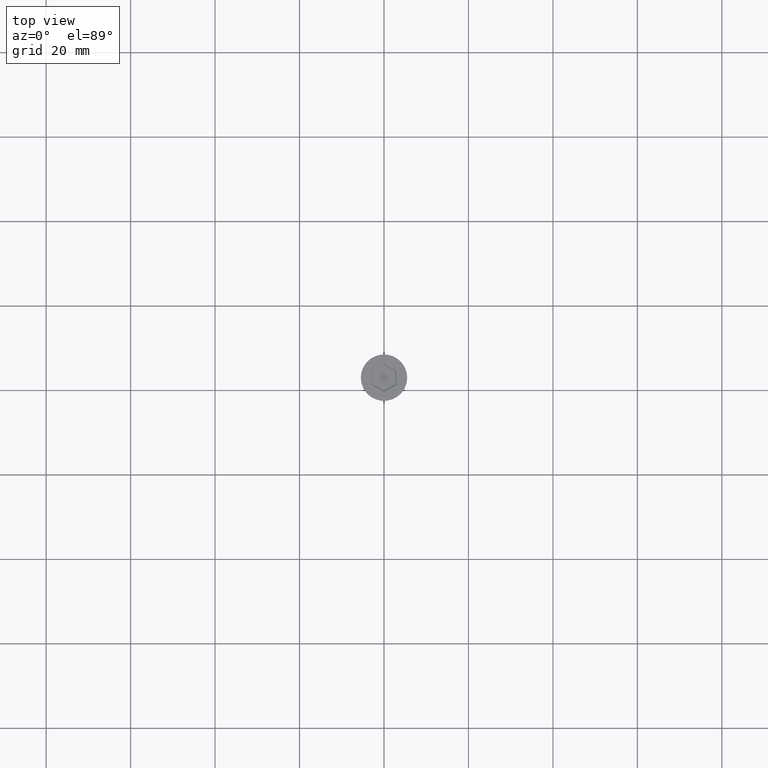
[diagram: clean part render]
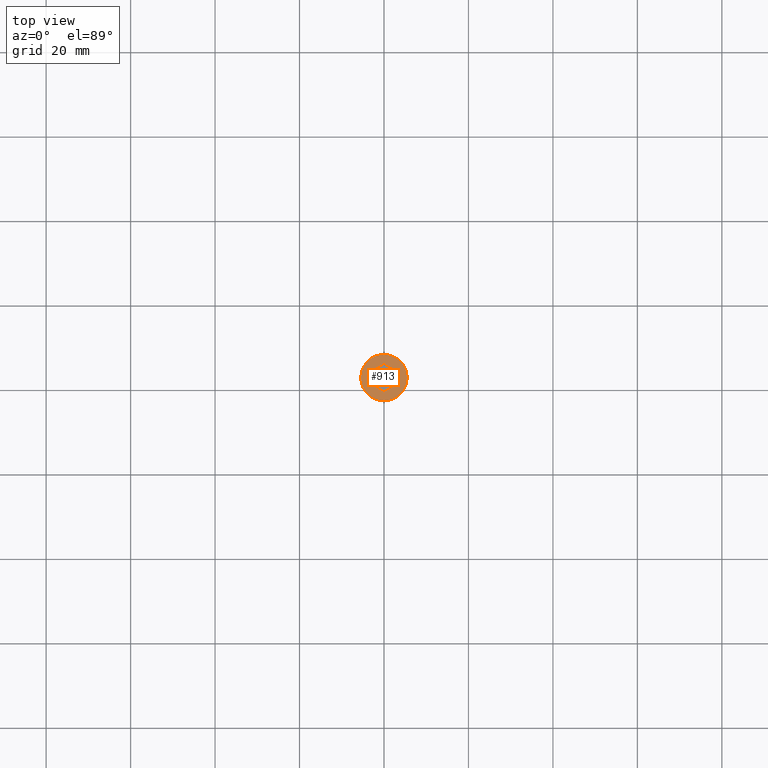
[diagram: same view with one face highlighted and labeled with its STEP entity id]
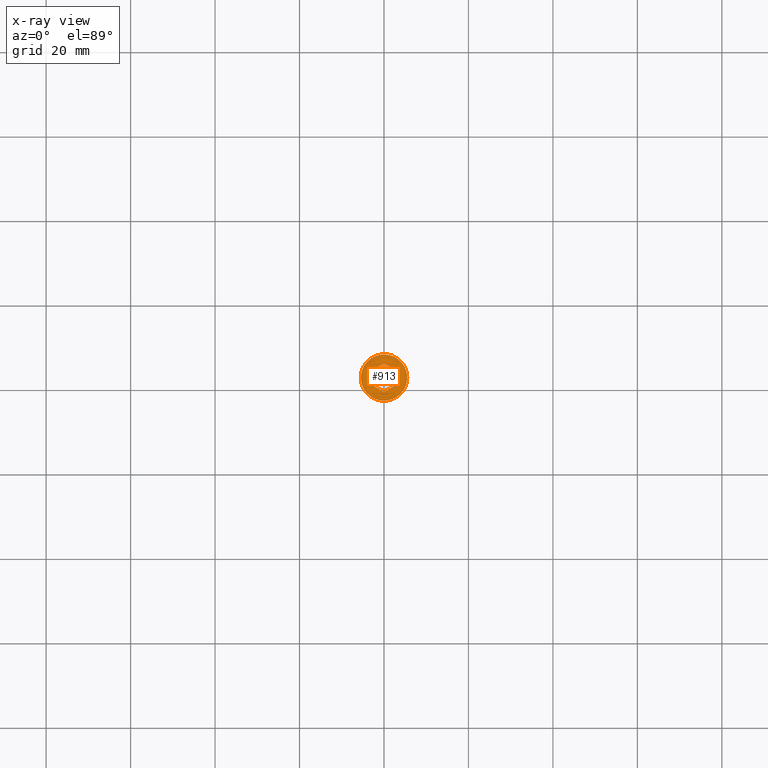
[diagram: x-ray of the same camera — body ghosted, the highlighted face saturated]
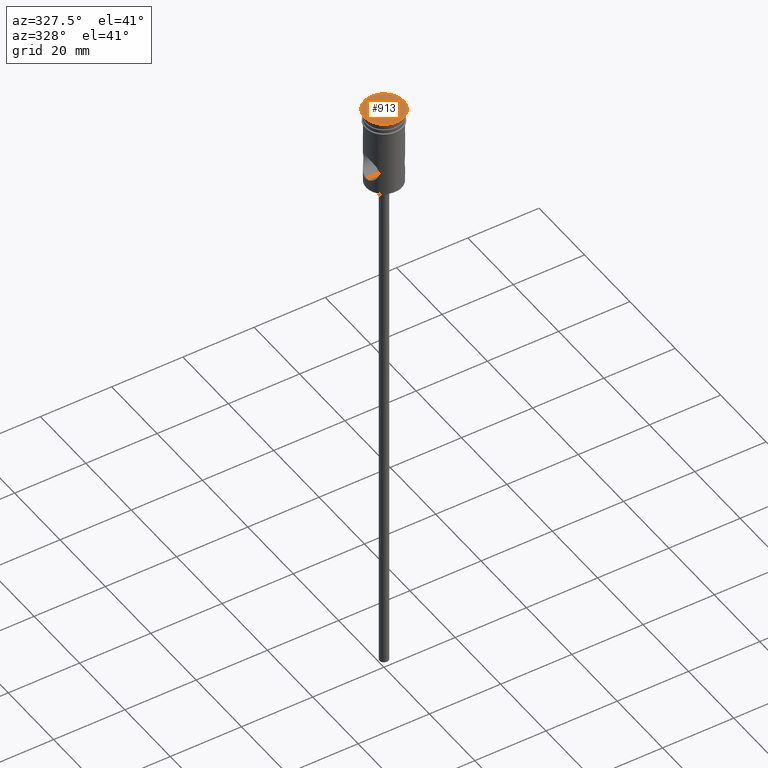
[diagram: same view with one face highlighted and labeled with its STEP entity id]
A machine part, top view. The second image highlights one B-rep face of the part: STEP entity #913.
The next image is the same camera in x-ray: the body ghosted, the highlighted face saturated — about 0% of this face is hidden behind the body in this view.
A second angle (auxiliary view) of the same face is appended — the face is thin or edge-on in the first view.
In plain terms, the highlighted planar face has unit normal (0, -0, 1).
Its self-contained STEP definition (entity closure, byte-faithful):
#17 = CARTESIAN_POINT ( 'NONE',  ( -2.899999999999994138, 1.674315780649911600, 0.000000000000000000 ) ) ;
#20 = AXIS2_PLACEMENT_3D ( 'NONE', #337, #1118, #114 ) ;
#22 = LINE ( 'NONE', #462, #736 ) ;
#31 = ORIENTED_EDGE ( 'NONE', *, *, #693, .T. ) ;
#43 = VERTEX_POINT ( 'NONE', #845 ) ;
#80 = VERTEX_POINT ( 'NONE', #877 ) ;
#105 = ORIENTED_EDGE ( 'NONE', *, *, #883, .T. ) ;
#114 = DIRECTION ( 'NONE',  ( 1.000000000000000000, 0.000000000000000000, 0.000000000000000000 ) ) ;
#129 = FACE_OUTER_BOUND ( 'NONE', #705, .T. ) ;
#133 = CARTESIAN_POINT ( 'NONE',  ( -2.799999999999997158, -1.732050807568871864, 0.000000000000000000 ) ) ;
#136 = AXIS2_PLACEMENT_3D ( 'NONE', #313, #1297, #448 ) ;
#202 = VECTOR ( 'NONE', #549, 1000.000000000000000 ) ;
#313 = CARTESIAN_POINT ( 'NONE',  ( 0.000000000000000000, 0.000000000000000000, 0.000000000000000000 ) ) ;
#330 = VERTEX_POINT ( 'NONE', #543 ) ;
#337 = CARTESIAN_POINT ( 'NONE',  ( 0.000000000000000000, 0.000000000000000000, 0.000000000000000000 ) ) ;
#338 = EDGE_CURVE ( 'NONE', #1261, #80, #1077, .T. ) ;
#339 = VECTOR ( 'NONE', #1004, 1000.000000000000000 ) ;
#341 = AXIS2_PLACEMENT_3D ( 'NONE', #1359, #359, #1056 ) ;
#359 = DIRECTION ( 'NONE',  ( -0.000000000000000000, -0.000000000000000000, 1.000000000000000000 ) ) ;
#386 = VECTOR ( 'NONE', #1408, 1000.000000000000000 ) ;
#413 = LINE ( 'NONE', #618, #760 ) ;
#424 = CARTESIAN_POINT ( 'NONE',  ( -5.500000000000000000, 6.735557395310442023E-16, 0.000000000000000000 ) ) ;
#438 = EDGE_CURVE ( 'NONE', #80, #527, #1410, .T. ) ;
#445 = ORIENTED_EDGE ( 'NONE', *, *, #338, .T. ) ;
#448 = DIRECTION ( 'NONE',  ( 1.000000000000000000, 0.000000000000000000, 0.000000000000000000 ) ) ;
#462 = CARTESIAN_POINT ( 'NONE',  ( -2.899999999999994138, 1.558845726811988852, 0.000000000000000000 ) ) ;
#479 = EDGE_CURVE ( 'NONE', #984, #43, #1007, .T. ) ;
#525 = EDGE_CURVE ( 'NONE', #586, #1261, #1099, .T. ) ;
#527 = VERTEX_POINT ( 'NONE', #1018 ) ;
#528 = VECTOR ( 'NONE', #1234, 1000.000000000000114 ) ;
#543 = CARTESIAN_POINT ( 'NONE',  ( 5.500000000000000000, 0.000000000000000000, 0.000000000000000000 ) ) ;
#549 = DIRECTION ( 'NONE',  ( 0.8660254037844387076, 0.4999999999999998890, 0.000000000000000000 ) ) ;
#553 = PLANE ( 'NONE',  #20 ) ;
#586 = VERTEX_POINT ( 'NONE', #17 ) ;
#599 = CIRCLE ( 'NONE', #341, 5.500000000000000000 ) ;
#618 = CARTESIAN_POINT ( 'NONE',  ( 0.09999999999999654998, -3.290896534380861382, 0.000000000000000000 ) ) ;
#634 = DIRECTION ( 'NONE',  ( -0.8660254037844387076, -0.4999999999999998890, 0.000000000000000000 ) ) ;
#688 = CARTESIAN_POINT ( 'NONE',  ( -0.09999999999999764633, 3.290896534380861382, 0.000000000000000000 ) ) ;
#693 = EDGE_CURVE ( 'NONE', #330, #1422, #599, .T. ) ;
#705 = EDGE_LOOP ( 'NONE', ( #31, #105 ) ) ;
#736 = VECTOR ( 'NONE', #904, 1000.000000000000000 ) ;
#760 = VECTOR ( 'NONE', #634, 1000.000000000000000 ) ;
#784 = ORIENTED_EDGE ( 'NONE', *, *, #839, .T. ) ;
#786 = FACE_BOUND ( 'NONE', #1279, .T. ) ;
#796 = ORIENTED_EDGE ( 'NONE', *, *, #438, .T. ) ;
#839 = EDGE_CURVE ( 'NONE', #527, #984, #413, .T. ) ;
#845 = CARTESIAN_POINT ( 'NONE',  ( -2.899999999999994138, -1.674315780649910934, 0.000000000000000000 ) ) ;
#877 = CARTESIAN_POINT ( 'NONE',  ( 2.899999999999992806, 1.674315780649911378, 0.000000000000000000 ) ) ;
#883 = EDGE_CURVE ( 'NONE', #1422, #330, #896, .T. ) ;
#896 = CIRCLE ( 'NONE', #136, 5.500000000000000000 ) ;
#904 = DIRECTION ( 'NONE',  ( 0.000000000000000000, 1.000000000000000000, 0.000000000000000000 ) ) ;
#913 = ADVANCED_FACE ( 'NONE', ( #786, #129 ), #553, .T. ) ;
#983 = EDGE_CURVE ( 'NONE', #43, #586, #22, .T. ) ;
#984 = VERTEX_POINT ( 'NONE', #1435 ) ;
#985 = CARTESIAN_POINT ( 'NONE',  ( 2.799999999999996270, 1.732050807568872086, 0.000000000000000000 ) ) ;
#988 = ORIENTED_EDGE ( 'NONE', *, *, #479, .T. ) ;
#1003 = ORIENTED_EDGE ( 'NONE', *, *, #525, .T. ) ;
#1004 = DIRECTION ( 'NONE',  ( -1.391032035867740017E-16, -1.000000000000000000, 0.000000000000000000 ) ) ;
#1007 = LINE ( 'NONE', #133, #528 ) ;
#1018 = CARTESIAN_POINT ( 'NONE',  ( 2.899999999999992362, -1.674315780649911822, 0.000000000000000000 ) ) ;
#1056 = DIRECTION ( 'NONE',  ( 1.000000000000000000, 0.000000000000000000, 0.000000000000000000 ) ) ;
#1077 = LINE ( 'NONE', #985, #386 ) ;
#1099 = LINE ( 'NONE', #688, #202 ) ;
#1118 = DIRECTION ( 'NONE',  ( 0.000000000000000000, -0.000000000000000000, 1.000000000000000000 ) ) ;
#1124 = CARTESIAN_POINT ( 'NONE',  ( 2.899999999999992362, -1.558845726811989296, 0.000000000000000000 ) ) ;
#1228 = ORIENTED_EDGE ( 'NONE', *, *, #983, .T. ) ;
#1234 = DIRECTION ( 'NONE',  ( -0.8660254037844385966, 0.5000000000000001110, 0.000000000000000000 ) ) ;
#1261 = VERTEX_POINT ( 'NONE', #1404 ) ;
#1279 = EDGE_LOOP ( 'NONE', ( #988, #1228, #1003, #445, #796, #784 ) ) ;
#1297 = DIRECTION ( 'NONE',  ( -0.000000000000000000, -0.000000000000000000, 1.000000000000000000 ) ) ;
#1359 = CARTESIAN_POINT ( 'NONE',  ( 0.000000000000000000, 0.000000000000000000, 0.000000000000000000 ) ) ;
#1404 = CARTESIAN_POINT ( 'NONE',  ( -9.683804684061200344E-16, 3.348631561299821868, 0.000000000000000000 ) ) ;
#1408 = DIRECTION ( 'NONE',  ( 0.8660254037844387076, -0.4999999999999998335, 0.000000000000000000 ) ) ;
#1410 = LINE ( 'NONE', #1124, #339 ) ;
#1422 = VERTEX_POINT ( 'NONE', #424 ) ;
#1435 = CARTESIAN_POINT ( 'NONE',  ( -4.552601062339046804E-16, -3.348631561299821868, 0.000000000000000000 ) ) ;